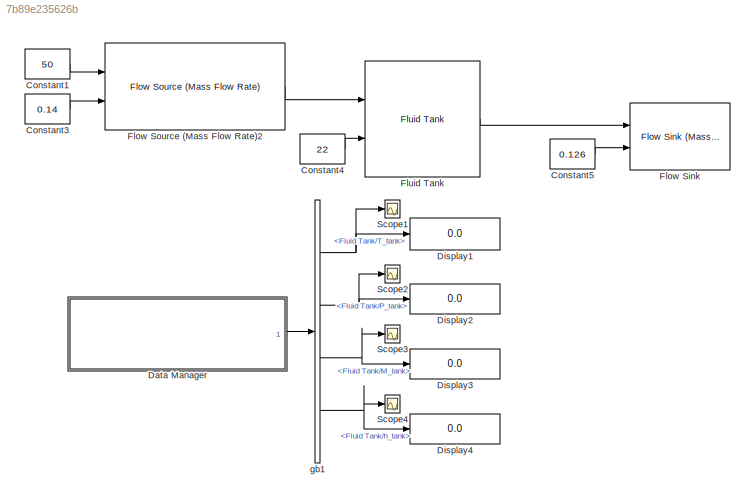
MODEL slx_7b89e235626b
KIND model
BLOCK [Constant] Constant1
  Value = 50
BLOCK [Constant] Constant3
  Value = 0.14
BLOCK [Constant] Constant4
  Value = 22
BLOCK [Constant] Constant5
  Value = 0.126
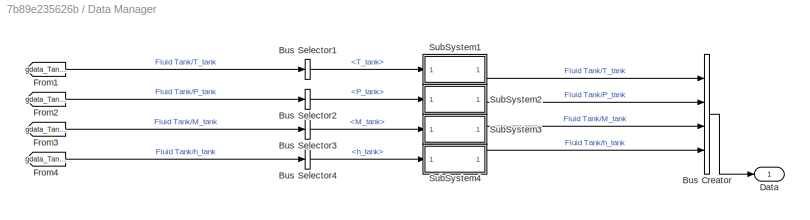
BLOCK [SubSystem] Data Manager
  AncestorBlock = DAEMOT_Lib/Support Functions/Data Manager
  OpenFcn = data_manager
  Ports = [0, 1]
  RequestExecContextInheritance = off
  UserDataPersistent = on
BLOCK [BusCreator] Data Manager/Bus Creator
  DisplayOption = bar
  Ports = [4, 1]
BLOCK [BusSelector] Data Manager/Bus Selector1
  OutputSignals = T_tank
  Ports = [1, 1]
BLOCK [BusSelector] Data Manager/Bus Selector2
  OutputSignals = P_tank
  Ports = [1, 1]
BLOCK [BusSelector] Data Manager/Bus Selector3
  OutputSignals = M_tank
  Ports = [1, 1]
BLOCK [BusSelector] Data Manager/Bus Selector4
  OutputSignals = h_tank
  Ports = [1, 1]
BLOCK [Outport] Data Manager/Data
  IconDisplay = Port number
BLOCK [From] Data Manager/From1
  GotoTag = gdata_Tank_testFluidTankdata_sink1
  TagVisibility = global
  UserDataPersistent = on
BLOCK [From] Data Manager/From2
  GotoTag = gdata_Tank_testFluidTankdata_sink1
  TagVisibility = global
  UserDataPersistent = on
BLOCK [From] Data Manager/From3
  GotoTag = gdata_Tank_testFluidTankdata_sink1
  TagVisibility = global
  UserDataPersistent = on
BLOCK [From] Data Manager/From4
  GotoTag = gdata_Tank_testFluidTankdata_sink1
  TagVisibility = global
  UserDataPersistent = on
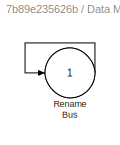
BLOCK [SubSystem] Data Manager/SubSystem1
  Ports = [1, 1]
  RequestExecContextInheritance = off
BLOCK [Outport] Data Manager/SubSystem1/Bus
  IconDisplay = Port number
BLOCK [Inport] Data Manager/SubSystem1/Rename
  IconDisplay = Port number
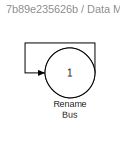
BLOCK [SubSystem] Data Manager/SubSystem2
  Ports = [1, 1]
  RequestExecContextInheritance = off
BLOCK [Outport] Data Manager/SubSystem2/Bus
  IconDisplay = Port number
BLOCK [Inport] Data Manager/SubSystem2/Rename
  IconDisplay = Port number
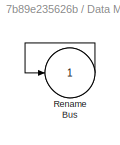
BLOCK [SubSystem] Data Manager/SubSystem3
  Ports = [1, 1]
  RequestExecContextInheritance = off
BLOCK [Outport] Data Manager/SubSystem3/Bus
  IconDisplay = Port number
BLOCK [Inport] Data Manager/SubSystem3/Rename
  IconDisplay = Port number
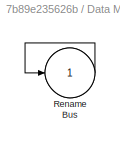
BLOCK [SubSystem] Data Manager/SubSystem4
  Ports = [1, 1]
  RequestExecContextInheritance = off
BLOCK [Outport] Data Manager/SubSystem4/Bus
  IconDisplay = Port number
BLOCK [Inport] Data Manager/SubSystem4/Rename
  IconDisplay = Port number
BLOCK [Display] Display1
  Decimation = 1
  Ports = [1]
BLOCK [Display] Display2
  Decimation = 1
  Ports = [1]
BLOCK [Display] Display3
  Decimation = 1
  Ports = [1]
BLOCK [Display] Display4
  Decimation = 1
  Ports = [1]
BLOCK [Reference] Flow Sink  REF=DAEMOT_Lib/Components/Flow Sink (Mass Flow Rate)
  M = 0
  M_ext = on
  P = 0
  P_ext = on
  Ports = [2]
  SourceBlock = DAEMOT_Lib/Components/Flow Sink (Mass Flow Rate)
  SourceType = Flow Sink (Mass Flow Rate)
  T = 0
  T_ext = on
BLOCK [Reference] Flow Source (Mass Flow Rate)2  REF=DAEMOT_Lib/Components/Flow Source (Mass Flow Rate)
  M = 0
  M_ext = on
  P = 0
  P_ext = on
  Ports = [2, 1]
  SourceBlock = DAEMOT_Lib/Components/Flow Source (Mass Flow Rate)
  SourceType = Flow Source (Mass Flow Rate)
  T = 0
  T_ext = on
BLOCK [Reference] Fluid Tank  REF=DAEMOT_Lib/Components/Fluid Tank
  D = 0.2
  H = 0
  M_init = 9.8367
  P_init = 104.0716
  Pamb = 101
  Ports = [2, 1]
  SourceBlock = DAEMOT_Lib/Components/Fluid Tank
  SourceType = Fluid Tank
  T_init = 22
  Tamb_init = 22
  fld = PG50
  h_init = 0.3
BLOCK [Scope] Scope1
  Floating = off
  LimitDataPoints = off
  NumInputPorts = 1
  Ports = [1]
  ShowLegends = off
BLOCK [Scope] Scope2
  Floating = off
  LimitDataPoints = off
  NumInputPorts = 1
  Ports = [1]
  SaveName = ScopeData1
  ShowLegends = off
BLOCK [Scope] Scope3
  Floating = off
  LimitDataPoints = off
  NumInputPorts = 1
  Ports = [1]
  SaveName = ScopeData2
  ShowLegends = off
BLOCK [Scope] Scope4
  Floating = off
  LimitDataPoints = off
  NumInputPorts = 1
  Ports = [1]
  SaveName = ScopeData3
  ShowLegends = off
BLOCK [BusSelector] gb1
  OutputSignals = Fluid Tank/T_tank,Fluid Tank/P_tank,Fluid Tank/M_tank,Fluid Tank/h_tank
  Ports = [1, 4]
LINE Constant1:1 -> Flow Source (Mass Flow Rate)2:1
LINE Constant3:1 -> Flow Source (Mass Flow Rate)2:2
LINE Constant4:1 -> Fluid Tank:2
LINE Constant5:1 -> Flow Sink:2
LINE Data Manager:1 -> gb1:1
LINE Flow Source (Mass Flow Rate)2:1 -> Fluid Tank:1
LINE Fluid Tank:1 -> Flow Sink:1
NET gb1:1 -> Display1:1, Scope1:1
NET gb1:2 -> Display2:1, Scope2:1
NET gb1:3 -> Display3:1, Scope3:1
NET gb1:4 -> Display4:1, Scope4:1
note: NET lines group one-source signal fan-out (src -> all destinations, sorted); 1:1 wires keep LINE
